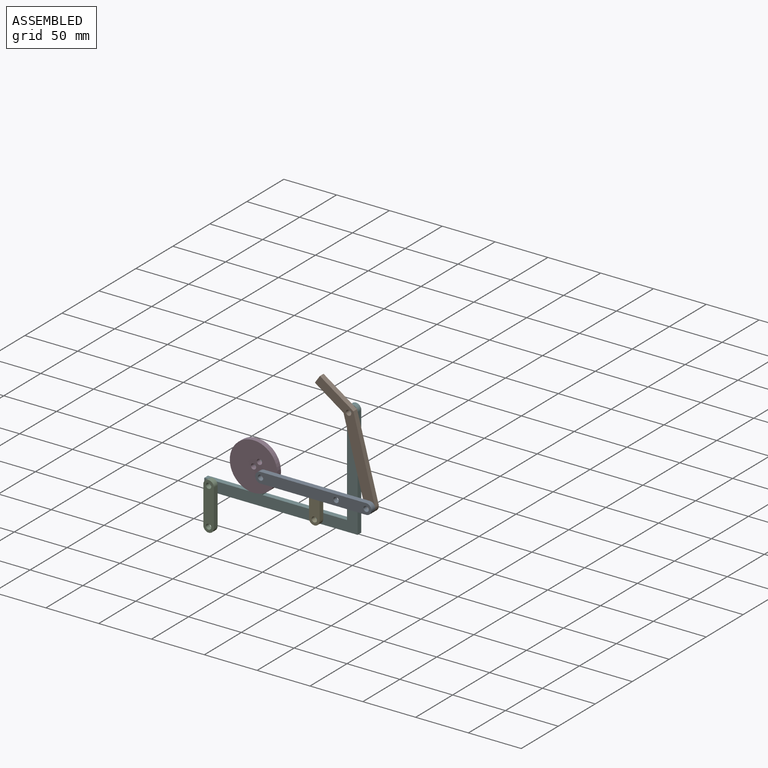
[diagram: assembled view]
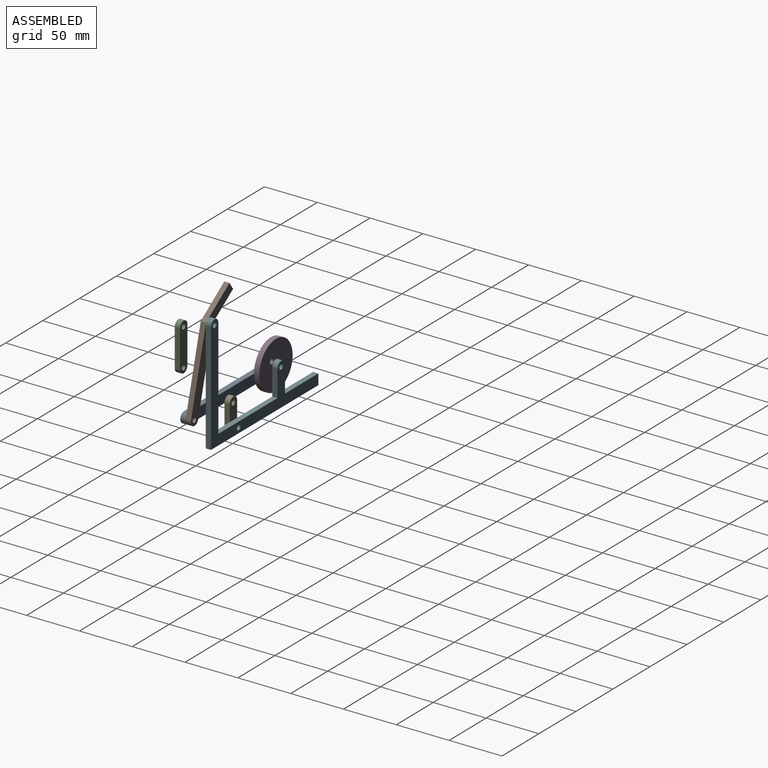
[diagram: assembled view, second angle]
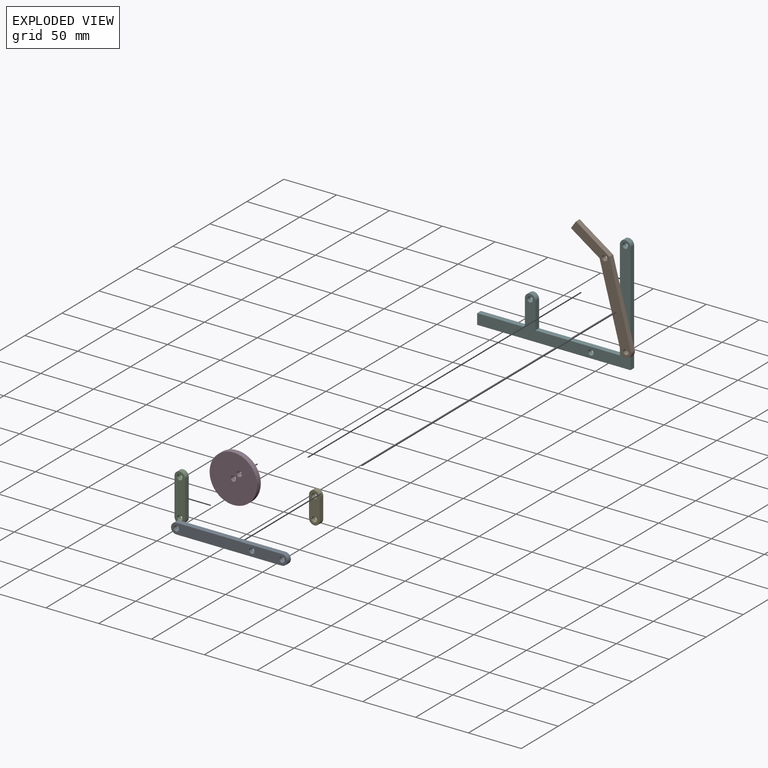
[diagram: exploded view]
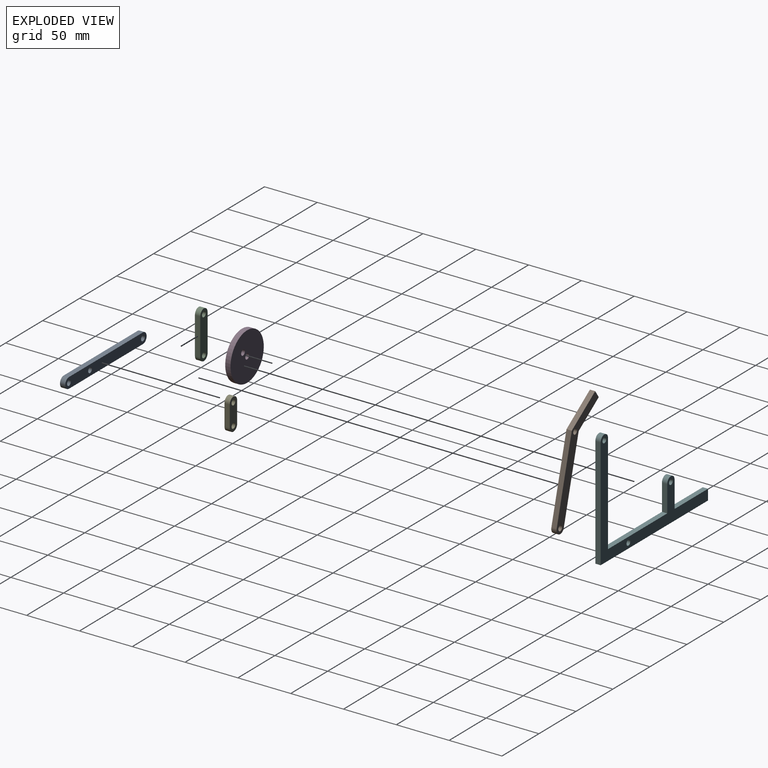
[diagram: exploded view, second angle]
ASSEMBLY  parts=6 mates=4
PART A: 9 faces, bbox 110x5x10 mm
  f0: plane 100x5mm, normal (0,0,1), area 500mm2, adj f1,f6,f7,f8
  f1: cylinder r=5mm len=10mm, axis (0,1,0), area 78.5mm2, adj f0,f2,f7,f8
  f2: plane 100x5mm, normal (0,0,-1), area 500mm2, adj f1,f6,f7,f8
  f3: cylinder r=2.5mm len=5mm, axis (0,1,0), area 78.5mm2, adj f7,f8
  f4: cylinder r=2.5mm len=5mm, axis (0,1,0), area 78.5mm2, adj f7,f8
  f5: cylinder r=2.5mm len=5mm, axis (0,1,0), area 78.5mm2, adj f7,f8
  f6: cylinder r=5mm len=10mm, axis (0,1,0), area 78.5mm2, adj f0,f2,f7,f8
  f7: plane 110x10mm, normal (0,-1,0), area 1019.6mm2, adj f0,f1,f2,f3,f4,f5,f6
  f8: plane 110x10mm, normal (0,1,0), area 1019.6mm2, adj f0,f1,f2,f3,f4,f5,f6
PART B: 10 faces, bbox 57x5x104.3 mm
  f0: plane 31.69x21.77mm, normal (0.57,0,0.82), area 192.2mm2, adj f1,f6,f8,f9
  f1: plane 6.93x5mm, normal (-0.82,0,0.57), area 42.1mm2, adj f0,f2,f8,f9
  f2: plane 27.11x18.62mm, normal (-0.57,0,-0.82), area 164.5mm2, adj f1,f3,f8,f9
  f3: plane 75x20.1mm, normal (-0.97,0,-0.26), area 388.2mm2, adj f2,f4,f8,f9
  f4: cylinder r=5mm len=9.83mm, axis (0,1,0), area 78.5mm2, adj f3,f6,f8,f9
  f5: cylinder r=2.5mm len=5mm, axis (0,1,0), area 78.5mm2, adj f8,f9
  f6: plane 76.2x20.42mm, normal (0.97,0,0.26), area 394.4mm2, adj f0,f4,f8,f9
  f7: cylinder r=2.5mm len=5mm, axis (0,1,0), area 78.5mm2, adj f8,f9
  f8: plane 104.26x57.04mm, normal (0,-1,0), area 1082.7mm2, adj f0,f1,f2,f3,f4,f5,f6,f7
  f9: plane 104.26x57.04mm, normal (0,1,0), area 1082.7mm2, adj f0,f1,f2,f3,f4,f5,f6,f7
PART C: 8 faces, bbox 10x5x45 mm
  f0: plane 35x5mm, normal (1,0,0), area 175mm2, adj f1,f4,f6,f7
  f1: cylinder r=5mm len=10mm, axis (0,1,0), area 78.5mm2, adj f0,f2,f6,f7
  f2: plane 35x5mm, normal (-1,0,0), area 175mm2, adj f1,f4,f6,f7
  f3: cylinder r=2.5mm len=5mm, axis (0,1,0), area 78.5mm2, adj f6,f7
  f4: cylinder r=5mm len=10mm, axis (0,1,0), area 78.5mm2, adj f0,f2,f6,f7
  f5: cylinder r=2.5mm len=5mm, axis (0,1,0), area 78.5mm2, adj f6,f7
  f6: plane 45x10mm, normal (0,-1,0), area 389.3mm2, adj f0,f1,f2,f3,f4,f5
  f7: plane 45x10mm, normal (0,1,0), area 389.3mm2, adj f0,f1,f2,f3,f4,f5
PART D: 5 faces, bbox 45x5x45 mm
  f0: cylinder r=2.5mm len=5mm, axis (0,1,0), area 78.5mm2, adj f3,f4
  f1: cylinder r=2.5mm len=5mm, axis (0,1,0), area 78.5mm2, adj f3,f4
  f2: cylinder r=22.5mm len=45mm, axis (0,1,0), area 706.9mm2, adj f3,f4
  f3: plane 45x45mm, normal (0,-1,0), area 1551.2mm2, adj f0,f1,f2
  f4: plane 45x45mm, normal (0,1,0), area 1551.2mm2, adj f0,f1,f2
PART E: 8 faces, bbox 10x5x30 mm
  f0: plane 20x5mm, normal (1,0,0), area 100mm2, adj f1,f4,f6,f7
  f1: cylinder r=5mm len=10mm, axis (0,1,0), area 78.5mm2, adj f0,f2,f6,f7
  f2: plane 20x5mm, normal (-1,0,0), area 100mm2, adj f1,f4,f6,f7
  f3: cylinder r=2.5mm len=5mm, axis (0,1,0), area 78.5mm2, adj f6,f7
  f4: cylinder r=5mm len=10mm, axis (0,1,0), area 78.5mm2, adj f0,f2,f6,f7
  f5: cylinder r=2.5mm len=5mm, axis (0,1,0), area 78.5mm2, adj f6,f7
  f6: plane 30x10mm, normal (0,-1,0), area 239.3mm2, adj f0,f1,f2,f3,f4,f5
  f7: plane 30x10mm, normal (0,1,0), area 239.3mm2, adj f0,f1,f2,f3,f4,f5
PART F: 15 faces, bbox 145.2x5x110 mm
  f0: plane 95x5mm, normal (-1,0,0), area 475mm2, adj f1,f12,f13,f14
  f1: plane 80x5mm, normal (0,0,1), area 400mm2, adj f0,f2,f13,f14
  f2: plane 25x5mm, normal (1,0,0), area 125mm2, adj f1,f3,f13,f14
  f3: cylinder r=5mm len=10mm, axis (0,1,0), area 78.5mm2, adj f2,f4,f13,f14
  f4: plane 25x5mm, normal (-1,0,0), area 125mm2, adj f3,f5,f13,f14
  f5: plane 45.15x5mm, normal (0,0,1), area 225.8mm2, adj f4,f6,f13,f14
  f6: plane 10x5mm, normal (-1,0,0), area 50mm2, adj f5,f7,f13,f14
  f7: plane 145.15x5mm, normal (0,0,-1), area 725.8mm2, adj f6,f8,f13,f14
  f8: plane 105x5mm, normal (1,0,0), area 525mm2, adj f7,f12,f13,f14
  f9: cylinder r=2.5mm len=5mm, axis (0,1,0), area 78.5mm2, adj f13,f14
  f10: cylinder r=2.5mm len=5mm, axis (0,1,0), area 78.5mm2, adj f13,f14
  f11: cylinder r=2.5mm len=5mm, axis (0,1,0), area 78.5mm2, adj f13,f14
  f12: cylinder r=5mm len=10mm, axis (0,1,0), area 78.5mm2, adj f0,f8,f13,f14
  f13: plane 145.15x110mm, normal (0,-1,0), area 2671.2mm2, adj f0,f1,f2,f3,f4,f5,f6,f7
  f14: plane 145.15x110mm, normal (0,1,0), area 2671.2mm2, adj f0,f1,f2,f3,f4,f5,f6,f7
PLACE A t=(40.52,-12.71,31.17)mm
PLACE B t=(40.52,-7.71,31.17)mm
PLACE C t=(-57.09,-86.31,17.94)mm
PLACE D t=(-69.58,-7.71,36.17)mm
PLACE E t=(-12.08,-7.71,6.17)mm
PLACE F t=(-38.79,-2.71,54.77)mm fixed
MATE revolute D.f2 <-> F.f3  axis (0,1,0) through (-69.58,-7.71,36.17)mm
MATE revolute E.f3 <-> F.f11  axis (0,1,0) through (-12.08,-7.71,6.17)mm
MATE revolute A.f6 <-> B.f7  axis (0,1,0) through (40.52,-12.71,31.17)mm
MATE revolute B.f5 <-> F.f9  axis (0,1,0) through (20.42,-7.71,106.17)mm
